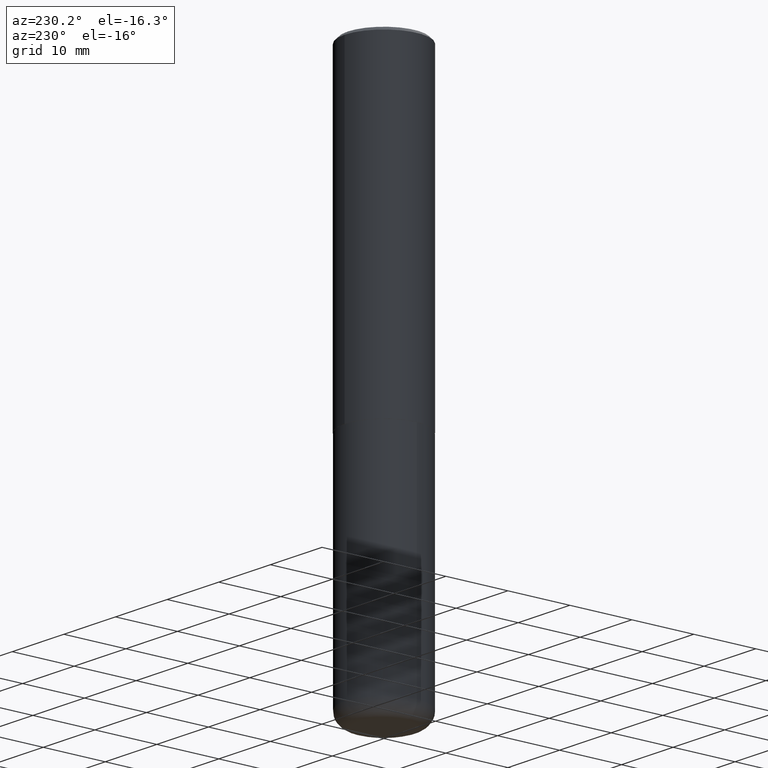
[diagram: clean part render]
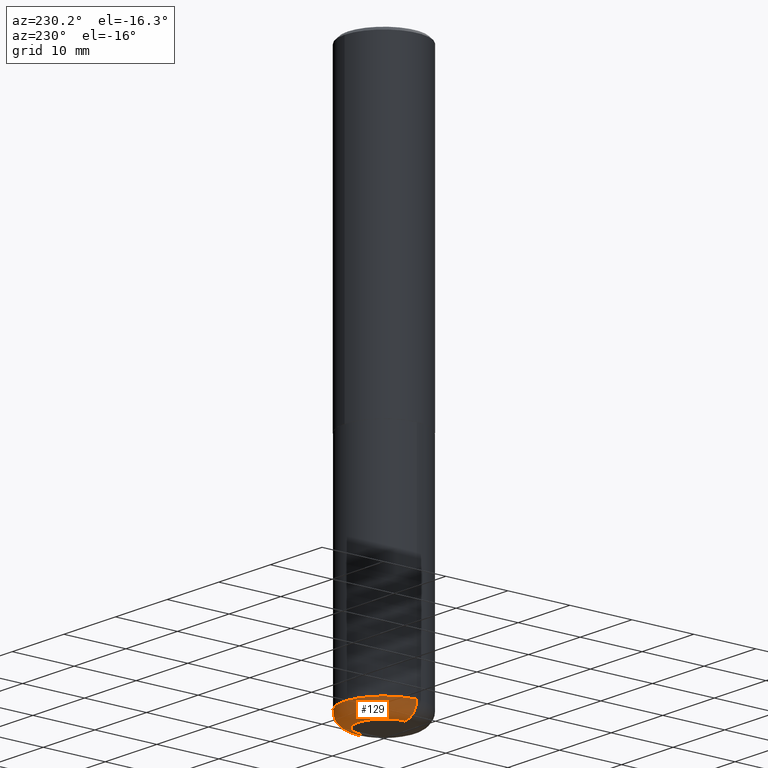
[diagram: same view with one face highlighted and labeled with its STEP entity id]
A machine part, auxiliary view. The second image highlights one B-rep face of the part: STEP entity #129.
In plain terms, the highlighted toroidal blend (fillet) surface has major radius 4.064 mm and minor (blend) radius 2.286 mm.
Its self-contained STEP definition (entity closure, byte-faithful):
#1 = DIRECTION ( 'NONE',  ( -2.445468806185136597E-29, 3.491481338843145583E-15, 1.000000000000000000 ) ) ;
#8 = ORIENTED_EDGE ( 'NONE', *, *, #231, .T. ) ;
#16 = FACE_OUTER_BOUND ( 'NONE', #305, .T. ) ;
#41 = DIRECTION ( 'NONE',  ( -2.445468806185136597E-29, 3.491481338843145583E-15, 1.000000000000000000 ) ) ;
#53 = ORIENTED_EDGE ( 'NONE', *, *, #181, .F. ) ;
#70 = AXIS2_PLACEMENT_3D ( 'NONE', #275, #1, #193 ) ;
#74 = CIRCLE ( 'NONE', #175, 0.08999999999999964972 ) ;
#98 = AXIS2_PLACEMENT_3D ( 'NONE', #376, #248, #307 ) ;
#105 = VERTEX_POINT ( 'NONE', #176 ) ;
#118 = CIRCLE ( 'NONE', #130, 0.2500000000000000555 ) ;
#129 = ADVANCED_FACE ( 'NONE', ( #16 ), #254, .T. ) ;
#130 = AXIS2_PLACEMENT_3D ( 'NONE', #219, #41, #310 ) ;
#131 = EDGE_CURVE ( 'NONE', #239, #369, #74, .T. ) ;
#148 = CARTESIAN_POINT ( 'NONE',  ( 0.2499999999999998612, -1.365169203487669276E-14, -3.410000000000000142 ) ) ;
#150 = EDGE_CURVE ( 'NONE', #239, #371, #296, .T. ) ;
#175 = AXIS2_PLACEMENT_3D ( 'NONE', #268, #337, #334 ) ;
#176 = CARTESIAN_POINT ( 'NONE',  ( -0.2499999999999998612, -1.012959452605487719E-14, -3.410000000000000142 ) ) ;
#181 = EDGE_CURVE ( 'NONE', #369, #105, #118, .T. ) ;
#193 = DIRECTION ( 'NONE',  ( 1.000000000000000000, -6.982962677686259611E-15, 0.000000000000000000 ) ) ;
#212 = DIRECTION ( 'NONE',  ( -2.445468806185136597E-29, 3.491481338843145583E-15, 1.000000000000000000 ) ) ;
#219 = CARTESIAN_POINT ( 'NONE',  ( 8.339048629091315302E-29, -1.190595136545512608E-14, -3.410000000000000142 ) ) ;
#231 = EDGE_CURVE ( 'NONE', #371, #105, #354, .T. ) ;
#232 = ORIENTED_EDGE ( 'NONE', *, *, #131, .F. ) ;
#239 = VERTEX_POINT ( 'NONE', #383 ) ;
#247 = AXIS2_PLACEMENT_3D ( 'NONE', #393, #212, #400 ) ;
#248 = DIRECTION ( 'NONE',  ( 7.105427357601001859E-15, 1.000000000000000000, -3.491481338843145583E-15 ) ) ;
#254 = TOROIDAL_SURFACE ( 'NONE', #247, 0.1600000000000000033, 0.08999999999999967748 ) ;
#268 = CARTESIAN_POINT ( 'NONE',  ( 0.1600000000000000033, -1.302322539388492780E-14, -3.410000000000000142 ) ) ;
#275 = CARTESIAN_POINT ( 'NONE',  ( 8.559140821647976968E-29, -1.222018468595100619E-14, -3.499999999999999112 ) ) ;
#296 = CIRCLE ( 'NONE', #70, 0.1600000000000000033 ) ;
#301 = CARTESIAN_POINT ( 'NONE',  ( -0.1600000000000000033, -1.060645541739486182E-14, -3.499999999999999112 ) ) ;
#305 = EDGE_LOOP ( 'NONE', ( #359, #8, #53, #232 ) ) ;
#307 = DIRECTION ( 'NONE',  ( -1.000000000000000000, 7.105427357600996337E-15, 0.000000000000000000 ) ) ;
#310 = DIRECTION ( 'NONE',  ( 1.000000000000000000, -6.982962677686269077E-15, 0.000000000000000000 ) ) ;
#334 = DIRECTION ( 'NONE',  ( 1.000000000000000000, -6.982962677686273810E-15, 0.000000000000000000 ) ) ;
#337 = DIRECTION ( 'NONE',  ( -6.982962677686266711E-15, -1.000000000000000000, 3.491481338843145583E-15 ) ) ;
#354 = CIRCLE ( 'NONE', #98, 0.08999999999999964972 ) ;
#359 = ORIENTED_EDGE ( 'NONE', *, *, #150, .T. ) ;
#369 = VERTEX_POINT ( 'NONE', #148 ) ;
#371 = VERTEX_POINT ( 'NONE', #301 ) ;
#376 = CARTESIAN_POINT ( 'NONE',  ( -0.1600000000000000033, -1.076908298823896635E-14, -3.410000000000000142 ) ) ;
#383 = CARTESIAN_POINT ( 'NONE',  ( 0.1600000000000000033, -1.333745871438080791E-14, -3.499999999999999112 ) ) ;
#393 = CARTESIAN_POINT ( 'NONE',  ( 8.339048629091315302E-29, -1.190595136545512608E-14, -3.410000000000000142 ) ) ;
#400 = DIRECTION ( 'NONE',  ( 1.000000000000000000, -6.982962677686265133E-15, 4.883557194083112340E-29 ) ) ;